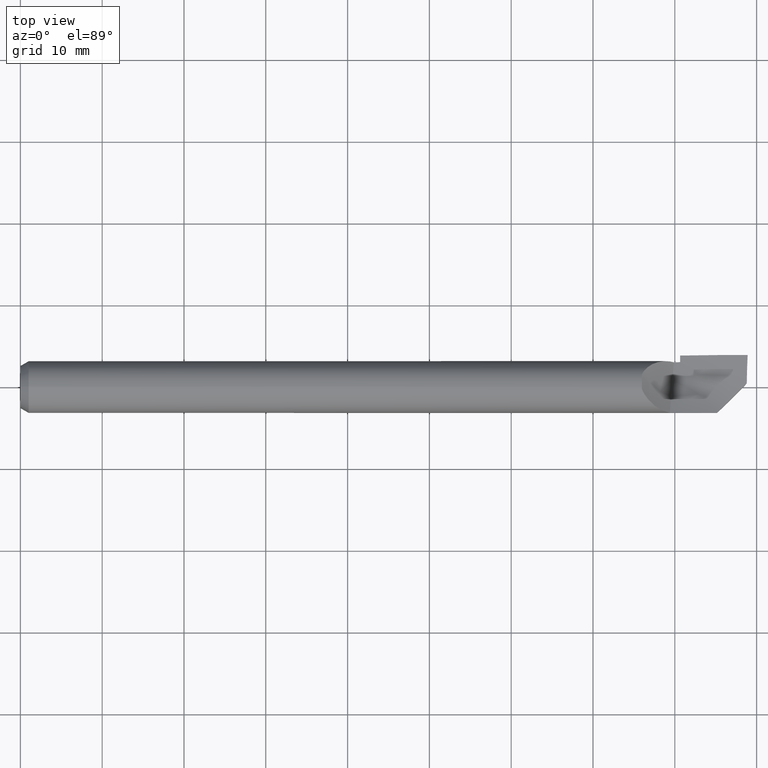
[diagram: clean part render]
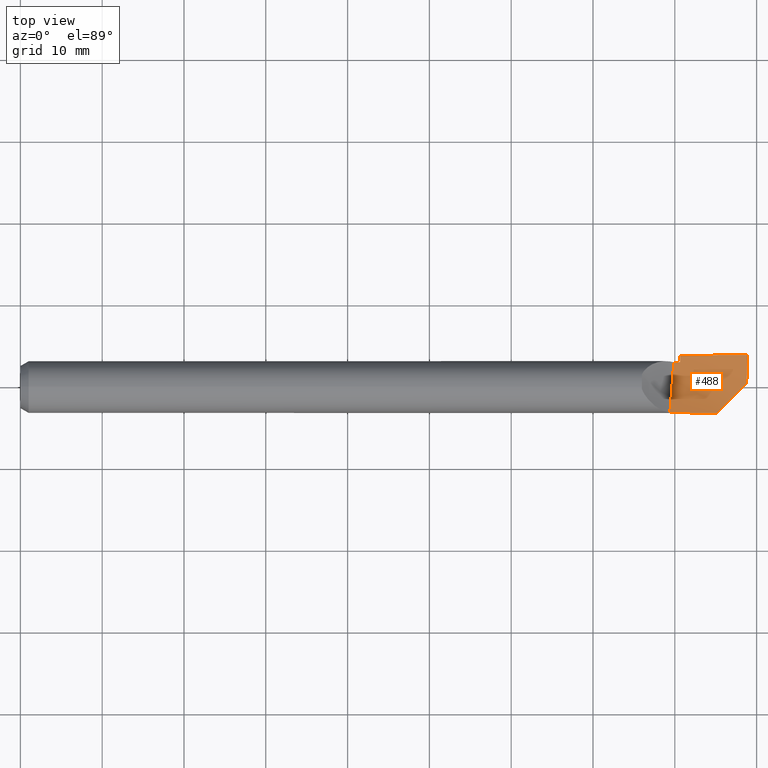
[diagram: same view with one face highlighted and labeled with its STEP entity id]
A machine part, top view. The second image highlights one B-rep face of the part: STEP entity #488.
In plain terms, the highlighted face is a freeform B-spline surface patch.
Its self-contained STEP definition (entity closure, byte-faithful):
#8 = VERTEX_POINT ( 'NONE', #120 ) ;
#14 = CARTESIAN_POINT ( 'NONE',  ( 3.382175925925926308, -0.2049062689069249821, 0.03163384036012240746 ) ) ;
#17 = CARTESIAN_POINT ( 'NONE',  ( 3.368526356736285976, 0.1544538597704816496, -0.01300020007539798468 ) ) ;
#28 = CARTESIAN_POINT ( 'NONE',  ( 3.495849975684604871, 0.01839969785906810096, -0.02602668210670665283 ) ) ;
#31 = B_SPLINE_CURVE_WITH_KNOTS ( 'NONE', 3,
 ( #118, #337, #288, #55, #675, #507, #225 ),
 .UNSPECIFIED., .F., .F.,
 ( 4, 3, 4 ),
 ( 0.000000000000000000, 0.001349089807550986732, 0.003351331494114775499 ),
 .UNSPECIFIED. ) ;
#41 = CARTESIAN_POINT ( 'NONE',  ( 3.174999999999998934, 0.1416853864997684731, -0.03091978158275687782 ) ) ;
#44 =( BOUNDED_CURVE ( )  B_SPLINE_CURVE ( 2, ( #358, #521, #574 ),
 .UNSPECIFIED., .F., .F. ) 
 B_SPLINE_CURVE_WITH_KNOTS ( ( 3, 3 ),
 ( 0.02873534713698542783, 0.03143753000647300788 ),
 .UNSPECIFIED. ) 
 CURVE ( )  GEOMETRIC_REPRESENTATION_ITEM ( )  RATIONAL_B_SPLINE_CURVE ( ( 0.9698469433659832051, 0.9697818586907493987, 0.9697867123744317031 ) ) 
 REPRESENTATION_ITEM ( '' )  );
#51 = CARTESIAN_POINT ( 'NONE',  ( 2.991000401229258809, -0.1928528710844065464, 0.07490772952600192880 ) ) ;
#53 = CARTESIAN_POINT ( 'NONE',  ( 3.028703703703703454, -0.1943805196971731819, 0.07084921587778005014 ) ) ;
#55 = CARTESIAN_POINT ( 'NONE',  ( 3.447074638142893388, 0.1545084763008415518, -0.006361513282307071880 ) ) ;
#64 = CARTESIAN_POINT ( 'NONE',  ( 3.174999999999997602, 0.1521864994767998247, -0.02949699750063330961 ) ) ;
#72 = CARTESIAN_POINT ( 'NONE',  ( 3.496649869797824550, 0.06458745176308582081, -0.02279496812936753977 ) ) ;
#78 = CARTESIAN_POINT ( 'NONE',  ( 3.138134047346899269, 0.03602737292293302362, -0.03428177899336793538 ) ) ;
#85 = CARTESIAN_POINT ( 'NONE',  ( 3.144404332545035263, 0.1199521406065451878, -0.03480652185880706018 ) ) ;
#89 = CARTESIAN_POINT ( 'NONE',  ( 3.495849975684604871, 0.01839969785906810096, -0.02602668210670665283 ) ) ;
#93 = CARTESIAN_POINT ( 'NONE',  ( 3.009862924295793274, 0.05902391015881291308, -0.06016745377421905266 ) ) ;
#112 = CARTESIAN_POINT ( 'NONE',  ( 3.264351851851850395, -0.1247678007292974400, 0.005745076254874972692 ) ) ;
#113 = VERTEX_POINT ( 'NONE', #543 ) ;
#117 = B_SPLINE_CURVE_WITH_KNOTS ( 'NONE', 3,
 ( #17, #237, #184, #419 ),
 .UNSPECIFIED., .F., .F.,
 ( 4, 4 ),
 ( 3.064378095414602570E-16, 0.004933731975051895355 ),
 .UNSPECIFIED. ) ;
#118 = CARTESIAN_POINT ( 'NONE',  ( 3.500000000000000000, 0.1543847790791963714, -0.001893455299683104338 ) ) ;
#120 = CARTESIAN_POINT ( 'NONE',  ( 3.125460231133434963, -0.1239539591572526162, 0.01534359831467680020 ) ) ;
#148 = CARTESIAN_POINT ( 'NONE',  ( 3.146527777777776702, 0.2061116974606637953, -0.02247770146546296602 ) ) ;
#150 = CARTESIAN_POINT ( 'NONE',  ( 3.471497664198065269, -0.005952613627472089740, -0.02710709261241137091 ) ) ;
#171 = CARTESIAN_POINT ( 'NONE',  ( 3.308407065166079075, -0.1249085961250403776, 0.002687374128684246171 ) ) ;
#184 = CARTESIAN_POINT ( 'NONE',  ( 3.239509584057660430, 0.1532295747175122236, -0.02404851664924140264 ) ) ;
#188 = CARTESIAN_POINT ( 'NONE',  ( 3.495849975684604871, 0.01839969785906810096, -0.02602668210670665283 ) ) ;
#190 = CARTESIAN_POINT ( 'NONE',  ( 3.128730994819307387, -0.08680158210580826705, -0.003279838997927689900 ) ) ;
#198 = CARTESIAN_POINT ( 'NONE',  ( 3.125460231133434963, -0.1239539591572526162, 0.01534359831467680020 ) ) ;
#207 = CARTESIAN_POINT ( 'NONE',  ( 3.264351851851851283, 0.2066970047796091170, -0.008930064018669539583 ) ) ;
#209 = CARTESIAN_POINT ( 'NONE',  ( 3.499999999999999112, -0.07302618588606765715, -0.04207541297911798067 ) ) ;
#213 = CARTESIAN_POINT ( 'NONE',  ( 3.028703703703703454, 0.2037630759974631833, -0.03583303906022125562 ) ) ;
#215 = CARTESIAN_POINT ( 'NONE',  ( 3.146527777777776702, -0.1990242226435472161, 0.05810884351300168310 ) ) ;
#218 = VERTEX_POINT ( 'NONE', #89 ) ;
#219 = CARTESIAN_POINT ( 'NONE',  ( 3.174999999999998934, 0.1205259677332470303, -0.03276432666734185872 ) ) ;
#224 = EDGE_CURVE ( 'NONE', #218, #113, #249, .T. ) ;
#225 = CARTESIAN_POINT ( 'NONE',  ( 3.368526356736285976, 0.1544538597704816496, -0.01300020007539798468 ) ) ;
#237 = CARTESIAN_POINT ( 'NONE',  ( 3.304016763998687267, 0.1539883258885592909, -0.01853115379148042793 ) ) ;
#249 = B_SPLINE_CURVE_WITH_KNOTS ( 'NONE', 3,
 ( #28, #150, #325, #379, #261, #250 ),
 .UNSPECIFIED., .F., .F.,
 ( 4, 2, 4 ),
 ( 0.0001472854475436725691, 0.002741540513847501217, 0.005335795580151329702 ),
 .UNSPECIFIED. ) ;
#250 = CARTESIAN_POINT ( 'NONE',  ( 3.352550836444441629, -0.1248994413810938370, -0.0003735541335652321792 ) ) ;
#257 = VERTEX_POINT ( 'NONE', #85 ) ;
#261 = CARTESIAN_POINT ( 'NONE',  ( 3.375956419575551148, -0.1014938582499846781, -0.01010188147978599918 ) ) ;
#264 = CARTESIAN_POINT ( 'NONE',  ( 3.174999999999997602, 0.1521864994767998525, -0.02949699750063330961 ) ) ;
#266 = CARTESIAN_POINT ( 'NONE',  ( 3.499999999999999112, 0.07302618588606739347, -0.04207541297911802231 ) ) ;
#267 = EDGE_CURVE ( 'NONE', #589, #577, #561, .T. ) ;
#268 = VERTEX_POINT ( 'NONE', #489 ) ;
#270 = CARTESIAN_POINT ( 'NONE',  ( 3.382175925925926308, -0.07578395415210027741, -0.03728902387995582796 ) ) ;
#288 = CARTESIAN_POINT ( 'NONE',  ( 3.464716405765519980, 0.1544888050678094593, -0.004871487012182728650 ) ) ;
#292 = CARTESIAN_POINT ( 'NONE',  ( 3.500000000000000000, -0.2060942905027398908, 0.01812570689412318012 ) ) ;
#299 = CARTESIAN_POINT ( 'NONE',  ( 3.500000000000000000, 0.1543847790791963714, -0.001893455299683104338 ) ) ;
#325 = CARTESIAN_POINT ( 'NONE',  ( 3.447381979869564184, -0.03006829795597257271, -0.02548594579681529373 ) ) ;
#326 = ORIENTED_EDGE ( 'NONE', *, *, #356, .T. ) ;
#330 = CARTESIAN_POINT ( 'NONE',  ( 2.991000401229258809, 0.2029672804173245360, -0.04009589640143299688 ) ) ;
#334 = CARTESIAN_POINT ( 'NONE',  ( 3.264351851851851283, -0.2019652457752361130, 0.04487134193656205222 ) ) ;
#335 = VERTEX_POINT ( 'NONE', #353 ) ;
#337 = CARTESIAN_POINT ( 'NONE',  ( 3.482358219370061736, 0.1544476003149635457, -0.003382132494812894151 ) ) ;
#345 = CARTESIAN_POINT ( 'NONE',  ( 3.125460231133434963, -0.1239539591572526162, 0.01534359831467680020 ) ) ;
#352 = CARTESIAN_POINT ( 'NONE',  ( 3.498918551006354960, 0.1323611133515253946, -0.009135550788443132925 ) ) ;
#353 = CARTESIAN_POINT ( 'NONE',  ( 3.368526356736285976, 0.1544538597704816496, -0.01300020007539798468 ) ) ;
#354 = FACE_OUTER_BOUND ( 'NONE', #607, .T. ) ;
#356 = EDGE_CURVE ( 'NONE', #577, #257, #44, .T. ) ;
#358 = CARTESIAN_POINT ( 'NONE',  ( 3.174999999999998934, 0.1205259677332470303, -0.03276432666734185872 ) ) ;
#361 = EDGE_CURVE ( 'NONE', #335, #589, #117, .T. ) ;
#366 = CARTESIAN_POINT ( 'NONE',  ( 3.498034409215068585, 0.1099931207448207743, -0.01474629728051164365 ) ) ;
#369 = B_SPLINE_CURVE_WITH_KNOTS ( 'NONE', 3,
 ( #299, #352, #366, #72, #517, #188 ),
 .UNSPECIFIED., .F., .F.,
 ( 4, 2, 4 ),
 ( 2.833050371661048658E-17, 0.001756987196397835713, 0.003513974392795642804 ),
 .UNSPECIFIED. ) ;
#379 = CARTESIAN_POINT ( 'NONE',  ( 3.399611456347043870, -0.07783882147849212341, -0.01698221236573351639 ) ) ;
#391 = CARTESIAN_POINT ( 'NONE',  ( 3.028703703703703454, -0.08142779715228852522, -0.02174116034979710343 ) ) ;
#395 = CARTESIAN_POINT ( 'NONE',  ( 3.009862924295792830, 0.2033875172735896408, -0.03796863801585428910 ) ) ;
#397 = ORIENTED_EDGE ( 'NONE', *, *, #361, .T. ) ;
#419 = CARTESIAN_POINT ( 'NONE',  ( 3.174999999999997602, 0.1521864994767998247, -0.02949699750063330961 ) ) ;
#425 = EDGE_CURVE ( 'NONE', #257, #8, #493, .T. ) ;
#438 = CARTESIAN_POINT ( 'NONE',  ( 3.146527777777777590, -0.08000280621734148778, -0.02707822014457490073 ) ) ;
#447 = CARTESIAN_POINT ( 'NONE',  ( 3.382175925925926308, 0.2072823120985544665, 0.004617573428123892057 ) ) ;
#452 = CARTESIAN_POINT ( 'NONE',  ( 3.264351851851850395, -0.07789338018472087566, -0.03218362201226535740 ) ) ;
#454 = ORIENTED_EDGE ( 'NONE', *, *, #732, .F. ) ;
#488 = ADVANCED_FACE ( 'NONE', ( #354 ), #540, .T. ) ;
#489 = CARTESIAN_POINT ( 'NONE',  ( 3.500000000000000000, 0.1543847790791963714, -0.001893455299683104338 ) ) ;
#491 =( BOUNDED_CURVE ( )  B_SPLINE_CURVE ( 2, ( #345, #558, #112, #171, #515 ),
 .UNSPECIFIED., .F., .T. ) 
 B_SPLINE_CURVE_WITH_KNOTS ( ( 3, 2, 3 ),
 ( 0.01189342224065684239, 0.02417071182882457245, 0.03197089145279925770 ),
 .UNSPECIFIED. ) 
 CURVE ( )  GEOMETRIC_REPRESENTATION_ITEM ( )  RATIONAL_B_SPLINE_CURVE ( ( 0.9698195346286886398, 0.9696007348737432086, 0.9708256816846617676, 0.9700474313154443529, 0.9698519482427696570 ) ) 
 REPRESENTATION_ITEM ( '' )  );
#493 = B_SPLINE_CURVE_WITH_KNOTS ( 'NONE', 3,
 ( #592, #581, #78, #535, #190, #198 ),
 .UNSPECIFIED., .F., .F.,
 ( 4, 2, 4 ),
 ( 0.000000000000000000, 0.5000000000000000000, 1.000000000000000000 ),
 .UNSPECIFIED. ) ;
#498 = CARTESIAN_POINT ( 'NONE',  ( 3.264351851851850395, 0.06690949330021978003, -0.05124728196438952527 ) ) ;
#501 = CARTESIAN_POINT ( 'NONE',  ( 3.009862924295792830, -0.1936379636148440608, 0.07288647818759057262 ) ) ;
#507 = CARTESIAN_POINT ( 'NONE',  ( 3.394708915604876420, 0.1545194461291200527, -0.01078581671666544242 ) ) ;
#515 = CARTESIAN_POINT ( 'NONE',  ( 3.352550836444441629, -0.1248994413810938370, -0.0003735541335652321792 ) ) ;
#517 = CARTESIAN_POINT ( 'NONE',  ( 3.496148821140915963, 0.04139667107768681825, -0.02522731308730795374 ) ) ;
#521 = CARTESIAN_POINT ( 'NONE',  ( 3.159703116382476029, 0.1202477255646206139, -0.03378786079878862147 ) ) ;
#535 = CARTESIAN_POINT ( 'NONE',  ( 3.131865293313417897, -0.04662908877056987089, -0.01728981778812519951 ) ) ;
#538 = CARTESIAN_POINT ( 'NONE',  ( 3.174999999999998046, 0.1311283908646657947, -0.03201027946002528435 ) ) ;
#540 =( BOUNDED_SURFACE ( )  B_SPLINE_SURFACE ( 3, 2, ( 
 ( #292, #14, #334, #215, #53, #501, #51 ),
 ( #209, #270, #452, #438, #391, #608, #597 ),
 ( #266, #557, #498, #554, #542, #93, #725 ),
 ( #611, #447, #207, #148, #213, #395, #330 ) ),
 .UNSPECIFIED., .F., .F., .F. ) 
 B_SPLINE_SURFACE_WITH_KNOTS ( ( 4, 4 ),
 ( 3, 2, 2, 3 ),
 ( 0.000000000000000000, 1.000000000000000000 ),
 ( 0.000000000000000000, 0.02083333333333333218, 0.04166666666666666435, 0.04500404516215790462 ),
 .UNSPECIFIED. ) 
 GEOMETRIC_REPRESENTATION_ITEM ( )  RATIONAL_B_SPLINE_SURFACE ( (
 ( 1.000000000000000000, 0.9978589232386034791, 1.000000000000000000, 0.9978589232386034791, 1.000000000000000000, 0.9996570119900473061, 0.9994239133377229578),
 ( 0.9407323688166668862, 0.9387181886030999678, 0.9407323688166668862, 0.9387181886030999678, 0.9407323688166668862, 0.9404097088935883253, 0.9401904254462191135),
 ( 0.9407323688166668862, 0.9387181886030999678, 0.9407323688166668862, 0.9387181886030999678, 0.9407323688166668862, 0.9404097088935883253, 0.9401904254462191135),
 ( 1.000000000000000000, 0.9978589232386034791, 1.000000000000000000, 0.9978589232386034791, 1.000000000000000000, 0.9996570119900473061, 0.9994239133377229578) ) ) 
 REPRESENTATION_ITEM ( '' )  SURFACE ( )  );
#542 = CARTESIAN_POINT ( 'NONE',  ( 3.028703703703703454, 0.05964796073318920366, -0.05954229574681949716 ) ) ;
#543 = CARTESIAN_POINT ( 'NONE',  ( 3.352550836444441629, -0.1248994413810938370, -0.0003735541335652321792 ) ) ;
#554 = CARTESIAN_POINT ( 'NONE',  ( 3.146527777777777590, 0.06355056898040480073, -0.05563276185049893102 ) ) ;
#555 = EDGE_CURVE ( 'NONE', #8, #113, #491, .T. ) ;
#557 = CARTESIAN_POINT ( 'NONE',  ( 3.382175925925926308, 0.07026841762003478709, -0.04686180207828014033 ) ) ;
#558 = CARTESIAN_POINT ( 'NONE',  ( 3.194978091071773108, -0.1245460901672910681, 0.01056004092945502133 ) ) ;
#561 =( BOUNDED_CURVE ( )  B_SPLINE_CURVE ( 3, ( #264, #41, #538, #657 ),
 .UNSPECIFIED., .F., .F. ) 
 B_SPLINE_CURVE_WITH_KNOTS ( ( 4, 4 ),
 ( 0.0001476302970268471499, 0.0009542565213174761729 ),
 .UNSPECIFIED. ) 
 CURVE ( )  GEOMETRIC_REPRESENTATION_ITEM ( )  RATIONAL_B_SPLINE_CURVE ( ( 0.9786959386026472529, 0.9754104957952798305, 0.9724608307163915555, 0.9698469433659822059 ) ) 
 REPRESENTATION_ITEM ( '' )  );
#574 = CARTESIAN_POINT ( 'NONE',  ( 3.144404332545035263, 0.1199521406065451878, -0.03480652185880706018 ) ) ;
#577 = VERTEX_POINT ( 'NONE', #219 ) ;
#581 = CARTESIAN_POINT ( 'NONE',  ( 3.141268502885683489, 0.07846872971603655045, -0.03725500148982845150 ) ) ;
#589 = VERTEX_POINT ( 'NONE', #64 ) ;
#592 = CARTESIAN_POINT ( 'NONE',  ( 3.144404332545035263, 0.1199521406065451878, -0.03480652185880706018 ) ) ;
#597 = CARTESIAN_POINT ( 'NONE',  ( 2.991000401229259698, -0.08186558912839246582, -0.02002971590140673400 ) ) ;
#607 = EDGE_LOOP ( 'NONE', ( #454, #733, #397, #710, #326, #672, #729, #719 ) ) ;
#608 = CARTESIAN_POINT ( 'NONE',  ( 3.009862924295793274, -0.08165566178924493768, -0.02088773232950116854 ) ) ;
#611 = CARTESIAN_POINT ( 'NONE',  ( 3.500000000000000000, 0.2060942905027396688, 0.01812570689412311420 ) ) ;
#657 = CARTESIAN_POINT ( 'NONE',  ( 3.174999999999998934, 0.1205259677332470303, -0.03276432666734185872 ) ) ;
#661 = EDGE_CURVE ( 'NONE', #268, #335, #31, .T. ) ;
#672 = ORIENTED_EDGE ( 'NONE', *, *, #425, .T. ) ;
#675 = CARTESIAN_POINT ( 'NONE',  ( 3.420891762066108566, 0.1545376711903659050, -0.008572922819964917326 ) ) ;
#710 = ORIENTED_EDGE ( 'NONE', *, *, #267, .T. ) ;
#719 = ORIENTED_EDGE ( 'NONE', *, *, #224, .F. ) ;
#725 = CARTESIAN_POINT ( 'NONE',  ( 2.991000401229259698, 0.05838689380311585381, -0.06077939481809170597 ) ) ;
#729 = ORIENTED_EDGE ( 'NONE', *, *, #555, .T. ) ;
#732 = EDGE_CURVE ( 'NONE', #268, #218, #369, .T. ) ;
#733 = ORIENTED_EDGE ( 'NONE', *, *, #661, .T. ) ;